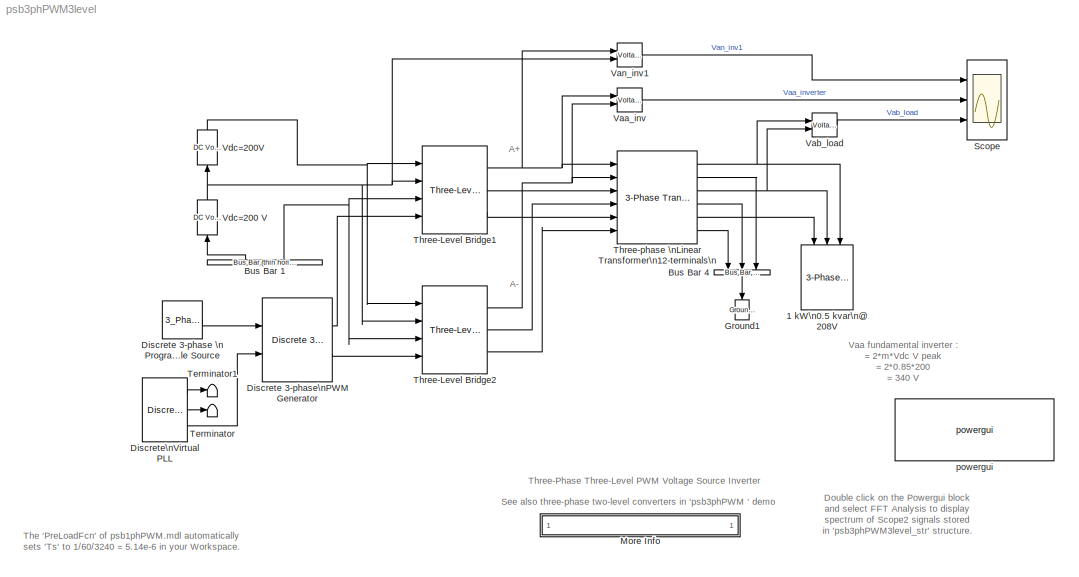
MODEL psb3phPWM3level
KIND model
CONFIG PreLoadFcn = assignin('base','Ts',[1/60/3240])
BLOCK [Reference]   Vdc=200 V  REF=powerlib2/Electrical\nSources/DC Voltage Source
  Description = source block
  PSBOutputType = 1
  Ports = [1, 1]
  SourceBlock = powerlib2/Electrical\nSources/DC Voltage Source
  SourceType = DC Voltage Source
  Tag = PoWeRsYsTeMbLoCk
  V = 200
  mesure = None
BLOCK [Reference] 1 kW\n0.5 kvar\n@ 208V   REF=powerlib2/Elements/3-Phase\nParallel RLC Load
  P3 = 1000
  Ports = [3]
  QC3 = 500
  QL3 = 0
  SourceBlock = powerlib2/Elements/3-Phase\nParallel RLC Load
  SourceType = 3-phase parallel RLC load
  Vpp = 208
  fn = 60
BLOCK [Reference] Bus Bar 1  REF=powerlib2/Connectors/Bus Bar (thin horiz)
  PSBOutputType = 111111111111111111111111111111111111111111111111111111111111111111111111111111111111
  Ports = [0, 2]
  SourceBlock = powerlib2/Connectors/Bus Bar (thin horiz)
  SourceType = Bus Bar
  Tag = PoWeRsYsTeMbLoCk
  input = 0
  output = 2
BLOCK [Reference] Bus Bar 4  REF=powerlib2/Connectors/Bus Bar (thin horiz)
  PSBOutputType = 111111111111111111111111111111111111111111111111111111111111111111111111111111111111
  Ports = [3, 1]
  SourceBlock = powerlib2/Connectors/Bus Bar (thin horiz)
  SourceType = Bus Bar
  Tag = PoWeRsYsTeMbLoCk
  input = 3
  output = 1
BLOCK [Reference] Discrete 3-phase \n Programmable Source  REF=powerlib_modelsV2/Discrete/3_Phase_Prog_Source
  HarmonicGeneration = off
  Par_HarmoA_pu = [3 0.2 -25 0]
  Par_HarmoB_pu = [2 0.15 35 2]
  Par_Timing_Harmo = [0.05  3]
  Par_Timing_Variation = [0.1 1.2]
  Par_Vps_LLrms = [1.01 -20  60]
  Ports = [0, 1]
  SinglePhase = off
  SourceBlock = powerlib_modelsV2/Discrete/3_Phase_Prog_Source
  SourceType = Discrete 3-phase Programmable Source
  Ts = Ts
  VariationEntity = Amplitude
  VariationFreq = 2
  VariationMag = 0.3
  VariationRate = 10
  VariationStep = -0.5
  VariationType = Step
  Xtime = [0 0.1 0.15 0.2]
  Yampli = [1 0.8 1.2 1.0]
BLOCK [Reference] Discrete 3-phase\nPWM Generator  REF=powerlib_extras/Discrete \nControl Blocks/Discrete 3-phase\nPWM Generator
  Fc = 18*60
  Freq = 60
  ModulatingSignals = off
  ModulatorMode = Synchronized
  ModulatorType = 3-level
  Phase = 0
  Ports = [2, 2]
  SourceBlock = powerlib_extras/Discrete \nControl Blocks/Discrete 3-phase\nPWM Generator
  SourceType = Discrete 3-phase PWM Generator (2- or 3-level)
  Ts = Ts
  m = 0.85
  nF = 18
BLOCK [Reference] Discrete\nVirtual PLL  REF=powerlib_extras/Discrete \nControl Blocks/Discrete\nVirtual PLL
  Freq = 60
  Phase = 0
  Ports = [0, 3]
  SourceBlock = powerlib_extras/Discrete \nControl Blocks/Discrete\nVirtual PLL
  SourceType = Discrete Virtual PLL
  Ts = Ts
BLOCK [Reference] Ground1  REF=powerlib2/Connectors/Ground (input)
  Ports = [1]
  SourceBlock = powerlib2/Connectors/Ground (input)
  SourceType = Ground
  Tag = PoWeRsYsTeMbLoCk
BLOCK [SubSystem] More Info
  MaskDisplay = disp('? : Double-click here for more info')
  MaskIconFrame = off
  MaskIconOpaque = on
  MaskIconRotate = none
  MaskIconUnits = autoscale
  MinAlgLoopOccurrences = off
  Ports = []
  RTWSystemCode = Auto
  TreatAsAtomicUnit = off
BLOCK [Scope] Scope
  DataFormat = StructureWithTime
  LimitDataPoints = off
  MaxDataPoints = 500000
  NumInputPorts = 3
  Ports = [3]
  SaveName = psb3phPWM3level_str
  SaveToWorkspace = on
  TimeRange = 0.1
  YMax = 300~400~400
  YMin = -300~-400~-400
  ZoomMode = yonly
BLOCK [Terminator] Terminator
BLOCK [Terminator] Terminator1
BLOCK [Reference] Three-Level Bridge1  REF=powerlib2/Power\nElectronics/Three-Level Bridge
  Cs = inf
  PAr_vf = [  1  1  ]
  PSBOutputType = 111
  Ports = [4, 3]
  Ron = 1e-4
  Rs = 1e6
  SourceBlock = powerlib2/Power\nElectronics/Three-Level Bridge
  SourceType = Three-Level Bridge
  Tag = PoWeRsYsTeMbLoCk
  arms = 3
  confi = ABC as output terminals
  device = GTO / Diodes
  mesure = None
BLOCK [Reference] Three-Level Bridge2  REF=powerlib2/Power\nElectronics/Three-Level Bridge
  Cs = inf
  PAr_vf = [  1  1  ]
  PSBOutputType = 111
  Ports = [4, 3]
  Ron = 1e-4
  Rs = 1e6
  SourceBlock = powerlib2/Power\nElectronics/Three-Level Bridge
  SourceType = Three-Level Bridge
  Tag = PoWeRsYsTeMbLoCk
  arms = 3
  confi = ABC as output terminals
  device = GTO / Diodes
  mesure = None
BLOCK [Reference] Three-phase \nLinear Transformer\n12-terminals\n  REF=powerlib2/Elements/3-Phase Transformer\n12-terminals
  Ports = [6, 6]
  SourceBlock = powerlib2/Elements/3-Phase Transformer\n12-terminals
  SourceType = Three-phase Linear Transformer 12-terminals
  pf = [ 1000 60 ]
  rxm = [ 200 200 ]
  urx1 = [ 240  0.002  0.04 ]
  urx2 = [ 208/sqrt(3) 0.002 0.04]
BLOCK [Reference] Vaa_inv  REF=powerlib2/Measurements/Voltage Measurement
  OutputType = Magnitude
  PSBOutputType = 0
  PSBequivalent = 0
  PhasorSimulation = off
  Ports = [2, 1]
  SourceBlock = powerlib2/Measurements/Voltage Measurement
  SourceType = Voltage Measurement
  Tag = PoWeRsYsTeMmEaSuReMeNt
BLOCK [Reference] Vab_load  REF=powerlib2/Measurements/Voltage Measurement
  OutputType = Magnitude
  PSBOutputType = 0
  PSBequivalent = 0
  PhasorSimulation = off
  Ports = [2, 1]
  SourceBlock = powerlib2/Measurements/Voltage Measurement
  SourceType = Voltage Measurement
  Tag = PoWeRsYsTeMmEaSuReMeNt
BLOCK [Reference] Van_inv1  REF=powerlib2/Measurements/Voltage Measurement
  OutputType = Magnitude
  PSBOutputType = 0
  PSBequivalent = 1
  PhasorSimulation = off
  Ports = [2, 1]
  SourceBlock = powerlib2/Measurements/Voltage Measurement
  SourceType = Voltage Measurement
  Tag = PoWeRsYsTeMmEaSuReMeNt
BLOCK [Reference] Vdc=200V   REF=powerlib2/Electrical\nSources/DC Voltage Source
  Description = source block
  PSBOutputType = 1
  Ports = [1, 1]
  SourceBlock = powerlib2/Electrical\nSources/DC Voltage Source
  SourceType = DC Voltage Source
  Tag = PoWeRsYsTeMbLoCk
  V = 200
  mesure = None
BLOCK [Reference] powergui  REF=powerlib2/powergui
  DisplayStyle = off
  Frange = [0:2:500]
  FreqAxis = on
  MaxFrequency = 5000
  Ports = []
  RmsSteady = 1
  SourceBlock = powerlib2/powergui
  SourceType = PSB option menu block
  StartTime = 0.1-2/60
  Ts = Ts
  Xlog = off
  Ylog = off
  ZoomFFT = on
  cycles = 2
  display = off
  echomessages = off
  frequency = 60
  frequencyindice = 1
  frequencyindicesteady = 1
  fundamental = 60
  methode = off
  save = off
  structure = psb3phPWM3level_str
  variable = ZData
ANNOTATION (root): A+
ANNOTATION (root): A-
ANNOTATION (root): Double click on the Powergui block \nand select FFT Analysis to display\nspectrum of Scope2 signals stored\nin 'psb3phPWM3level_str' structure.
ANNOTATION (root): See also three-phase two-level converters in 'psb3phPWM ' demo
ANNOTATION (root): The 'PreLoadFcn' of psb1phPWM.mdl automatically\n sets 'Ts' to 1/60/3240 = 5.14e-6 in your Workspace.
ANNOTATION (root): Three-Phase Three-Level PWM Voltage Source Inverter
ANNOTATION (root): Vaa fundamental inverter :\n= 2*m*Vdc V peak\n= 2*0.85*200 \n= 340 V
ANNOTATION More Info: Circuit Description
ANNOTATION More Info: Demonstration
ANNOTATION More Info: P. Giroux and G. Sybille (Hydro-Quebec)
ANNOTATION More Info: Run the simulation and observe the following three waveforms on the Scope block:\nPhase-neutral voltage Van_inv1 generated by inverter 1 (trace 1), phase A voltage Vaa_inverter generated by the twin inverter (trace 2) and\nphase-phase load voltage Vab_load (trace 3). \nThe Van_inv1 waveform cleary demonstrates the three levels: +200 V, 0 V, and -200 V.\n\nOnce the simulation is completed, open the...<+1203ch>
ANNOTATION More Info: The system consists of two three-phase three-level PWM voltage source converters connected in twin configuration\nThe inverter feeds an AC load (1kW, 500 var 60Hz @ 208 Vrms) through a three-phase transformer.\nHarmonic filtering is performed by the transformer leakage inductance (8%) and load capacitance (500 var).\n\nEach of the two inverters uses the Three-Level Bridge block where the specified...<+1916ch>
ANNOTATION More Info: This demonstration illustrates simulation of a 3-phase, 3-level inverter\nand Discrete 3-phase PWM Generator. It also demonstrates \nharmonic analysis of PWM waveforms using the Powergui/FFT tool.
NET   Vdc=200 V:1 -> Three-Level Bridge1:2, Three-Level Bridge2:2, Van_inv1:2, Vdc=200V :1
LINE Bus Bar 1:1 ->   Vdc=200 V:1
NET Bus Bar 1:2 -> Three-Level Bridge1:3, Three-Level Bridge2:3
LINE Bus Bar 4:1 -> Ground1:1
LINE Discrete 3-phase \n Programmable Source:1 -> Discrete 3-phase\nPWM Generator:1
LINE Discrete 3-phase\nPWM Generator:1 -> Three-Level Bridge1:4
LINE Discrete 3-phase\nPWM Generator:2 -> Three-Level Bridge2:4
LINE Discrete\nVirtual PLL:1 -> Terminator1:1
LINE Discrete\nVirtual PLL:2 -> Terminator:1
LINE Discrete\nVirtual PLL:3 -> Discrete 3-phase\nPWM Generator:2
NET Three-Level Bridge1:1 -> Three-phase \nLinear Transformer\n12-terminals\n:1, Vaa_inv:1, Van_inv1:1
LINE Three-Level Bridge1:2 -> Three-phase \nLinear Transformer\n12-terminals\n:3
LINE Three-Level Bridge1:3 -> Three-phase \nLinear Transformer\n12-terminals\n:5
NET Three-Level Bridge2:1 -> Three-phase \nLinear Transformer\n12-terminals\n:2, Vaa_inv:2
LINE Three-Level Bridge2:2 -> Three-phase \nLinear Transformer\n12-terminals\n:4
LINE Three-Level Bridge2:3 -> Three-phase \nLinear Transformer\n12-terminals\n:6
NET Three-phase \nLinear Transformer\n12-terminals\n:1 -> 1 kW\n0.5 kvar\n@ 208V :3, Vab_load:1
LINE Three-phase \nLinear Transformer\n12-terminals\n:2 -> Bus Bar 4:3
NET Three-phase \nLinear Transformer\n12-terminals\n:3 -> 1 kW\n0.5 kvar\n@ 208V :2, Vab_load:2
LINE Three-phase \nLinear Transformer\n12-terminals\n:4 -> Bus Bar 4:2
LINE Three-phase \nLinear Transformer\n12-terminals\n:5 -> 1 kW\n0.5 kvar\n@ 208V :1
LINE Three-phase \nLinear Transformer\n12-terminals\n:6 -> Bus Bar 4:1
LINE Vaa_inv:1 -> Scope:2
LINE Vab_load:1 -> Scope:3
LINE Van_inv1:1 -> Scope:1
NET Vdc=200V :1 -> Three-Level Bridge1:1, Three-Level Bridge2:1
note: NET lines group one-source signal fan-out (src -> all destinations, sorted); 1:1 wires keep LINE
